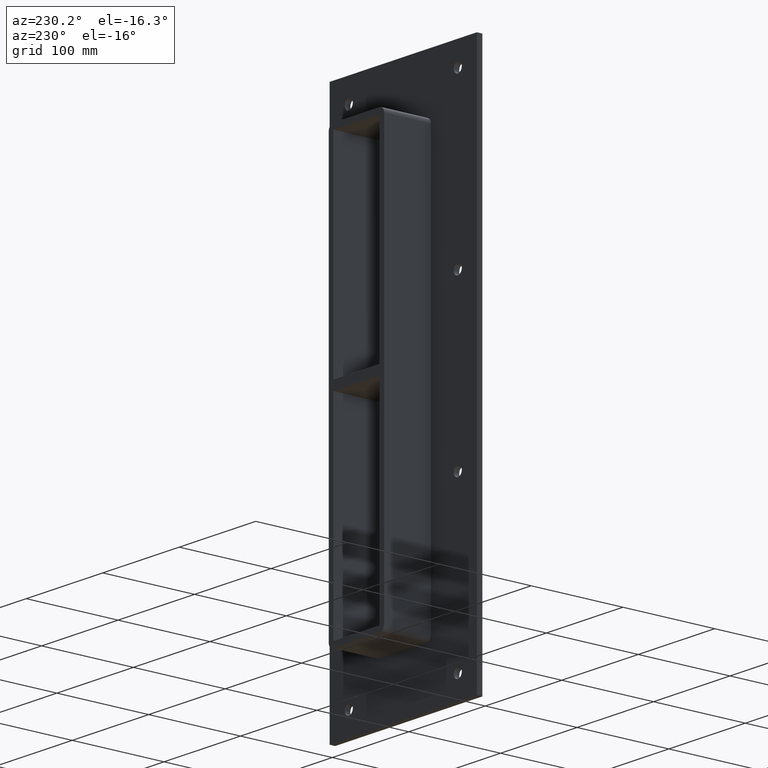
[diagram: clean part render]
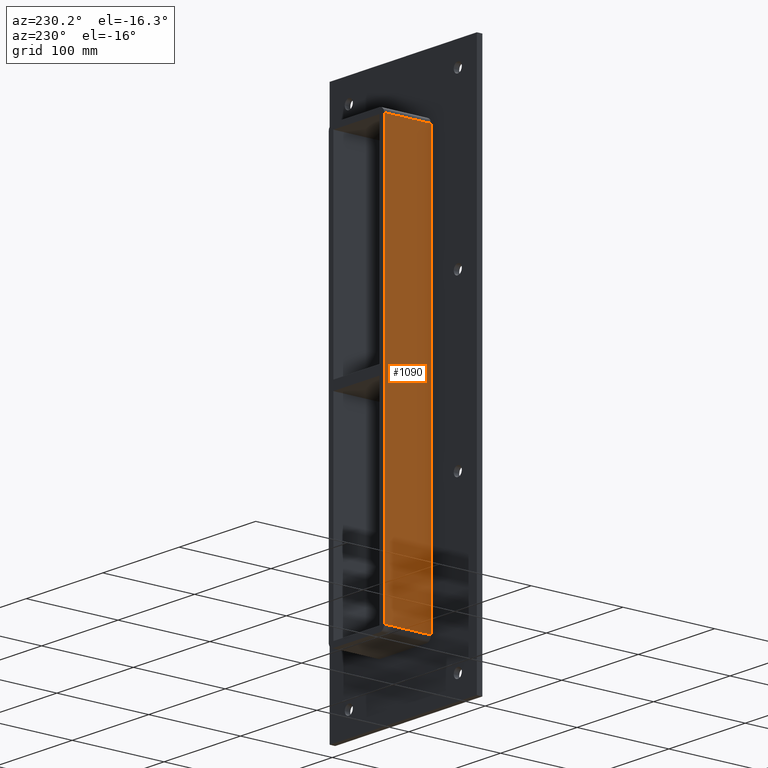
[diagram: same view with one face highlighted and labeled with its STEP entity id]
A machine part, auxiliary view. The second image highlights one B-rep face of the part: STEP entity #1090.
In plain terms, the highlighted planar face has unit normal (-1, 0, 0).
Its self-contained STEP definition (entity closure, byte-faithful):
#528=CARTESIAN_POINT('',(-36.25,6.000000000000001,223.0));
#529=VERTEX_POINT('',#528);
#539=CARTESIAN_POINT('',(-36.25,6.000000000000001,-222.99999999999997));
#540=VERTEX_POINT('',#539);
#541=CARTESIAN_POINT('',(-36.25,6.000000000000001,-222.99999999999997));
#542=DIRECTION('',(0.0,0.0,1.0));
#543=VECTOR('',#542,446.0);
#544=LINE('',#541,#543);
#545=EDGE_CURVE('',#540,#529,#544,.T.);
#999=CARTESIAN_POINT('',(-36.25,57.0,-222.99999999999997));
#1000=VERTEX_POINT('',#999);
#1001=CARTESIAN_POINT('',(-36.25,6.000000000000001,-222.99999999999997));
#1002=DIRECTION('',(0.0,1.0,0.0));
#1003=VECTOR('',#1002,51.0);
#1004=LINE('',#1001,#1003);
#1005=EDGE_CURVE('',#540,#1000,#1004,.T.);
#1067=CARTESIAN_POINT('',(-36.25,0.0,-228.99999999999994));
#1068=DIRECTION('',(-1.0,0.0,0.0));
#1069=DIRECTION('',(0.0,0.0,1.0));
#1070=AXIS2_PLACEMENT_3D('',#1067,#1068,#1069);
#1071=PLANE('',#1070);
#1072=ORIENTED_EDGE('',*,*,#545,.T.);
#1073=CARTESIAN_POINT('',(-36.25,57.0,223.0));
#1074=VERTEX_POINT('',#1073);
#1075=CARTESIAN_POINT('',(-36.25,57.0,223.0));
#1076=DIRECTION('',(0.0,-1.0,0.0));
#1077=VECTOR('',#1076,51.0);
#1078=LINE('',#1075,#1077);
#1079=EDGE_CURVE('',#1074,#529,#1078,.T.);
#1080=ORIENTED_EDGE('',*,*,#1079,.F.);
#1081=CARTESIAN_POINT('',(-36.25,57.0,-222.99999999999997));
#1082=DIRECTION('',(0.0,0.0,1.0));
#1083=VECTOR('',#1082,446.0);
#1084=LINE('',#1081,#1083);
#1085=EDGE_CURVE('',#1000,#1074,#1084,.T.);
#1086=ORIENTED_EDGE('',*,*,#1085,.F.);
#1087=ORIENTED_EDGE('',*,*,#1005,.F.);
#1088=EDGE_LOOP('',(#1072,#1080,#1086,#1087));
#1089=FACE_OUTER_BOUND('',#1088,.T.);
#1090=ADVANCED_FACE('',(#1089),#1071,.T.);